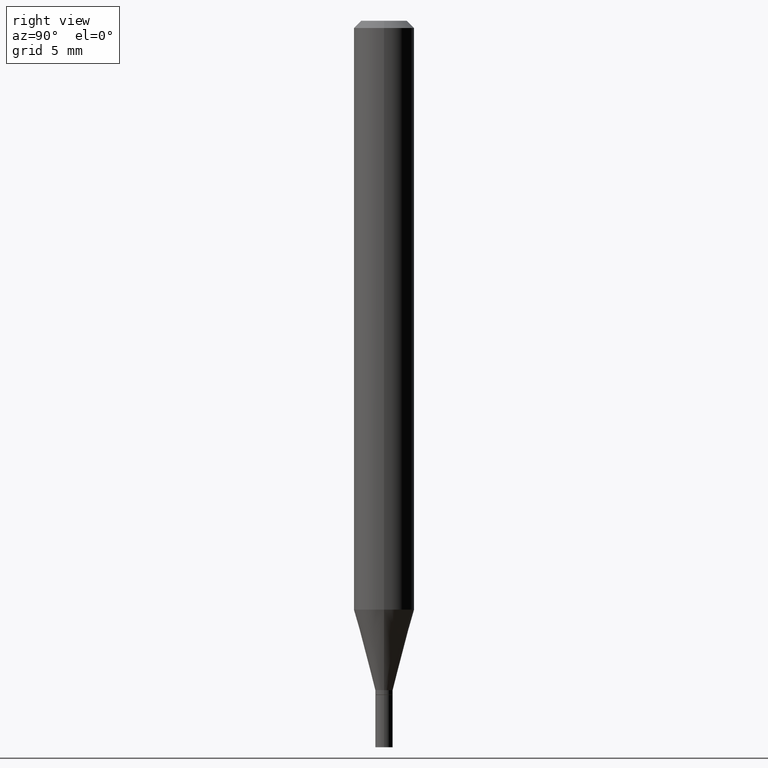
[diagram: clean part render]
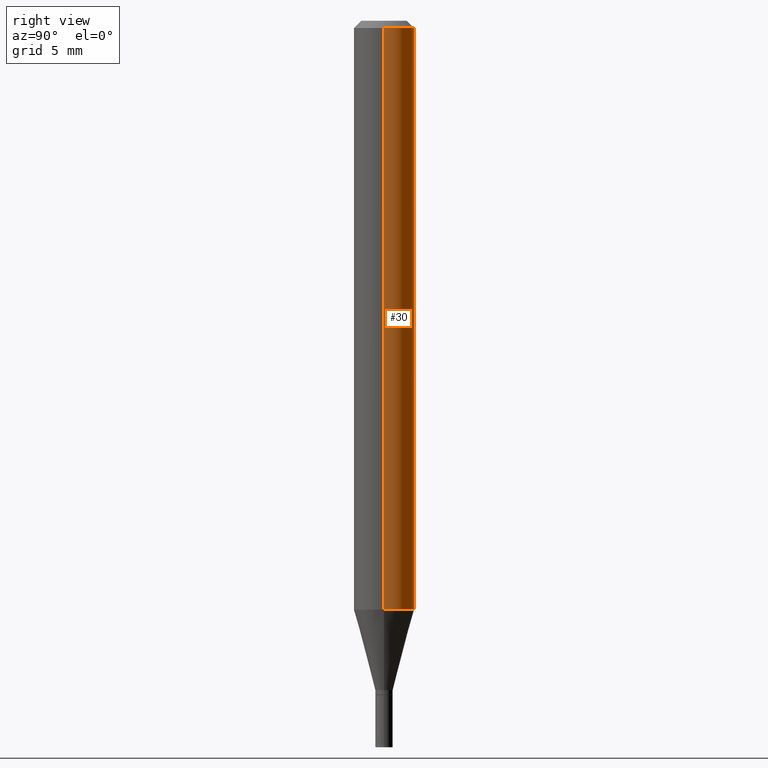
[diagram: same view with one face highlighted and labeled with its STEP entity id]
A machine part, right view. The second image highlights one B-rep face of the part: STEP entity #30.
In plain terms, the highlighted cylindrical surface (edge-blend (fillet) strip) has radius 1.5875 mm, axis along (-0, 0, 1).
Its self-contained STEP definition (entity closure, byte-faithful):
#5 = DIRECTION ( 'NONE',  ( -2.445468806185136877E-29, 3.491481338843145188E-15, 1.000000000000000000 ) ) ;
#21 = LINE ( 'NONE', #234, #235 ) ;
#30 = ADVANCED_FACE ( 'NONE', ( #426 ), #94, .T. ) ;
#74 = EDGE_CURVE ( 'NONE', #254, #134, #145, .T. ) ;
#92 = VECTOR ( 'NONE', #5, 39.37007874015748143 ) ;
#94 = CYLINDRICAL_SURFACE ( 'NONE', #405, 0.06250000000000000000 ) ;
#133 = DIRECTION ( 'NONE',  ( -2.445468806185136597E-29, 3.491481338843145583E-15, 1.000000000000000000 ) ) ;
#134 = VERTEX_POINT ( 'NONE', #192 ) ;
#137 = CARTESIAN_POINT ( 'NONE',  ( 3.668203209277705088E-31, -5.237222008264718399E-17, -0.01499999999999999944 ) ) ;
#145 = LINE ( 'NONE', #386, #92 ) ;
#168 = EDGE_CURVE ( 'NONE', #442, #307, #21, .T. ) ;
#169 = CARTESIAN_POINT ( 'NONE',  ( -0.06250000000000001388, -3.801285834545430586E-15, -1.215923739063185183 ) ) ;
#192 = CARTESIAN_POINT ( 'NONE',  ( -0.06250000000000000000, -1.704784422389007524E-15, -0.01499999999999999944 ) ) ;
#199 = EDGE_LOOP ( 'NONE', ( #394, #313, #262, #312 ) ) ;
#214 = CIRCLE ( 'NONE', #371, 0.06250000000000000000 ) ;
#234 = CARTESIAN_POINT ( 'NONE',  ( 0.06250000000000000000, -4.364351673553916694E-16, 3.047610484872459871E-30 ) ) ;
#235 = VECTOR ( 'NONE', #382, 39.37007874015748143 ) ;
#254 = VERTEX_POINT ( 'NONE', #169 ) ;
#262 = ORIENTED_EDGE ( 'NONE', *, *, #273, .F. ) ;
#264 = CIRCLE ( 'NONE', #388, 0.06250000000000000000 ) ;
#269 = CARTESIAN_POINT ( 'NONE',  ( 0.000000000000000000, 0.000000000000000000, 0.000000000000000000 ) ) ;
#273 = EDGE_CURVE ( 'NONE', #307, #134, #214, .T. ) ;
#292 = CARTESIAN_POINT ( 'NONE',  ( 0.06250000000000001388, -4.681810211750884871E-15, -1.215923739063185183 ) ) ;
#295 = DIRECTION ( 'NONE',  ( 1.000000000000000000, -6.982962677686270655E-15, 0.000000000000000000 ) ) ;
#307 = VERTEX_POINT ( 'NONE', #387 ) ;
#312 = ORIENTED_EDGE ( 'NONE', *, *, #168, .F. ) ;
#313 = ORIENTED_EDGE ( 'NONE', *, *, #74, .T. ) ;
#325 = CARTESIAN_POINT ( 'NONE',  ( 2.973503574579014958E-29, -4.245375044395493202E-15, -1.215923739063185183 ) ) ;
#371 = AXIS2_PLACEMENT_3D ( 'NONE', #137, #133, #459 ) ;
#381 = DIRECTION ( 'NONE',  ( 1.000000000000000000, -6.982962677686266711E-15, 4.876176775795935793E-29 ) ) ;
#382 = DIRECTION ( 'NONE',  ( -2.445468806185136877E-29, 3.491481338843145188E-15, 1.000000000000000000 ) ) ;
#386 = CARTESIAN_POINT ( 'NONE',  ( -0.06250000000000000000, 4.440892098500626162E-16, -3.074334431409316114E-30 ) ) ;
#387 = CARTESIAN_POINT ( 'NONE',  ( 0.06250000000000000000, -4.888073874380388472E-16, -0.01499999999999999944 ) ) ;
#388 = AXIS2_PLACEMENT_3D ( 'NONE', #325, #404, #295 ) ;
#394 = ORIENTED_EDGE ( 'NONE', *, *, #430, .T. ) ;
#404 = DIRECTION ( 'NONE',  ( -2.445468806185136597E-29, 3.491481338843145583E-15, 1.000000000000000000 ) ) ;
#405 = AXIS2_PLACEMENT_3D ( 'NONE', #269, #410, #381 ) ;
#410 = DIRECTION ( 'NONE',  ( -2.445468806185136597E-29, 3.491481338843145583E-15, 1.000000000000000000 ) ) ;
#426 = FACE_OUTER_BOUND ( 'NONE', #199, .T. ) ;
#430 = EDGE_CURVE ( 'NONE', #442, #254, #264, .T. ) ;
#442 = VERTEX_POINT ( 'NONE', #292 ) ;
#459 = DIRECTION ( 'NONE',  ( 1.000000000000000000, -6.982962677686266711E-15, 0.000000000000000000 ) ) ;